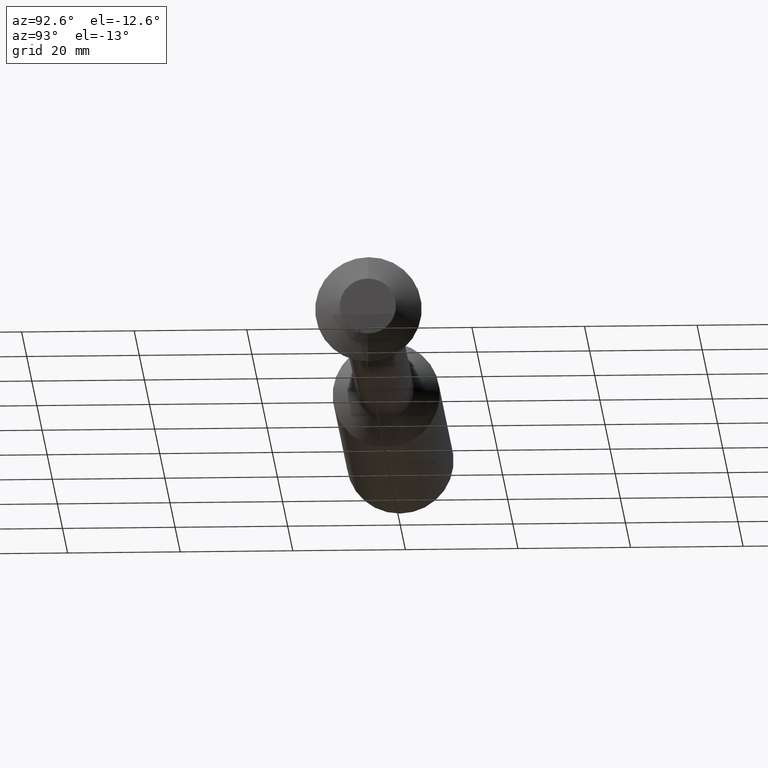
[diagram: clean part render]
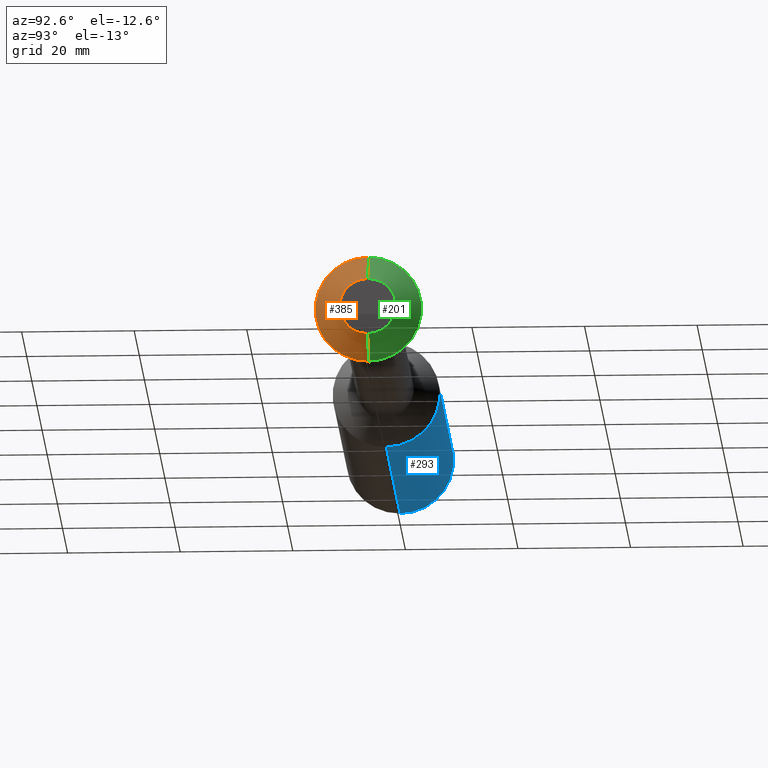
[diagram: same view with three faces highlighted in distinct colors, each labeled with its STEP entity id]
A machine part, auxiliary view with three faces highlighted in distinct colors.
Their STEP definitions:

[orange] entity #385 — the highlighted conical surface has half-angle 60.15 deg.
#39 = DIRECTION ( 'NONE',  ( -0.4977310399126148588, 1.062174661273174402E-16, -0.8673314314075714071 ) ) ;
#40 = EDGE_CURVE ( 'NONE', #486, #448, #194, .T. ) ;
#45 = FACE_OUTER_BOUND ( 'NONE', #67, .T. ) ;
#54 = CARTESIAN_POINT ( 'NONE',  ( 5.000000000000000000, 2.412554194320274621E-17, -0.1969999999999990925 ) ) ;
#59 = VECTOR ( 'NONE', #300, 39.37007874015748854 ) ;
#67 = EDGE_LOOP ( 'NONE', ( #185, #251, #209, #418 ) ) ;
#70 = DIRECTION ( 'NONE',  ( 0.0000000000000000000, 0.0000000000000000000, 1.000000000000000000 ) ) ;
#71 = DIRECTION ( 'NONE',  ( -1.000000000000000000, -0.0000000000000000000, -0.0000000000000000000 ) ) ;
#84 = CARTESIAN_POINT ( 'NONE',  ( 4.899286715156970118, 0.0000000000000000000, 0.0000000000000000000 ) ) ;
#96 = CARTESIAN_POINT ( 'NONE',  ( 5.000000000000000000, 3.487181760572077146E-17, -0.1969999999999990925 ) ) ;
#98 = VERTEX_POINT ( 'NONE', #363 ) ;
#128 = CONICAL_SURFACE ( 'NONE', #400, 0.1969999999999990925, 1.049815545074586076 ) ;
#180 = CIRCLE ( 'NONE', #429, 0.3724999999999991096 ) ;
#185 = ORIENTED_EDGE ( 'NONE', *, *, #40, .F. ) ;
#194 = LINE ( 'NONE', #54, #213 ) ;
#209 = ORIENTED_EDGE ( 'NONE', *, *, #276, .T. ) ;
#213 = VECTOR ( 'NONE', #39, 39.37007874015748854 ) ;
#217 = VERTEX_POINT ( 'NONE', #326 ) ;
#245 = CIRCLE ( 'NONE', #475, 0.1969999999999990925 ) ;
#251 = ORIENTED_EDGE ( 'NONE', *, *, #404, .T. ) ;
#257 = DIRECTION ( 'NONE',  ( 0.0000000000000000000, 0.0000000000000000000, 1.000000000000000000 ) ) ;
#264 = CARTESIAN_POINT ( 'NONE',  ( 5.000000000000000000, 0.0000000000000000000, 0.1969999999999990925 ) ) ;
#275 = CARTESIAN_POINT ( 'NONE',  ( 5.000000000000000000, 0.0000000000000000000, 0.0000000000000000000 ) ) ;
#276 = EDGE_CURVE ( 'NONE', #217, #98, #467, .T. ) ;
#300 = DIRECTION ( 'NONE',  ( -0.4977310399126148588, 0.0000000000000000000, 0.8673314314075714071 ) ) ;
#303 = DIRECTION ( 'NONE',  ( -1.000000000000000000, -0.0000000000000000000, -0.0000000000000000000 ) ) ;
#326 = CARTESIAN_POINT ( 'NONE',  ( 5.000000000000000000, 0.0000000000000000000, 0.1969999999999990925 ) ) ;
#330 = CARTESIAN_POINT ( 'NONE',  ( 5.000000000000000000, 0.0000000000000000000, 0.0000000000000000000 ) ) ;
#344 = EDGE_CURVE ( 'NONE', #448, #98, #180, .T. ) ;
#353 = DIRECTION ( 'NONE',  ( -1.000000000000000000, -0.0000000000000000000, -0.0000000000000000000 ) ) ;
#363 = CARTESIAN_POINT ( 'NONE',  ( 4.899286715156970118, 0.0000000000000000000, 0.3724999999999991096 ) ) ;
#365 = DIRECTION ( 'NONE',  ( 0.0000000000000000000, 0.0000000000000000000, 1.000000000000000000 ) ) ;
#385 = ADVANCED_FACE ( 'NONE', ( #45 ), #128, .T. ) ;
#400 = AXIS2_PLACEMENT_3D ( 'NONE', #275, #353, #257 ) ;
#404 = EDGE_CURVE ( 'NONE', #486, #217, #245, .T. ) ;
#418 = ORIENTED_EDGE ( 'NONE', *, *, #344, .F. ) ;
#429 = AXIS2_PLACEMENT_3D ( 'NONE', #84, #71, #70 ) ;
#448 = VERTEX_POINT ( 'NONE', #473 ) ;
#467 = LINE ( 'NONE', #264, #59 ) ;
#473 = CARTESIAN_POINT ( 'NONE',  ( 4.899286715156970118, 4.561809326823879363E-17, -0.3724999999999991096 ) ) ;
#475 = AXIS2_PLACEMENT_3D ( 'NONE', #330, #303, #365 ) ;
#486 = VERTEX_POINT ( 'NONE', #96 ) ;

[blue] entity #293 — the highlighted cylindrical surface (partial cylindrical patch) has radius 9.5212 mm, axis along (-1, -0, -0).
#2 = AXIS2_PLACEMENT_3D ( 'NONE', #378, #339, #403 ) ;
#6 = DIRECTION ( 'NONE',  ( -1.000000000000000000, -0.0000000000000000000, -0.0000000000000000000 ) ) ;
#21 = CARTESIAN_POINT ( 'NONE',  ( 0.02500000000000062589, 0.0000000000000000000, 0.3748500000000000165 ) ) ;
#31 = FACE_OUTER_BOUND ( 'NONE', #268, .T. ) ;
#37 = CIRCLE ( 'NONE', #231, 0.3748500000000000165 ) ;
#83 = ORIENTED_EDGE ( 'NONE', *, *, #354, .T. ) ;
#88 = DIRECTION ( 'NONE',  ( -1.000000000000000000, -0.0000000000000000000, -0.0000000000000000000 ) ) ;
#99 = VERTEX_POINT ( 'NONE', #267 ) ;
#106 = DIRECTION ( 'NONE',  ( -1.000000000000000000, -0.0000000000000000000, -0.0000000000000000000 ) ) ;
#126 = CYLINDRICAL_SURFACE ( 'NONE', #315, 0.3748500000000000165 ) ;
#130 = VERTEX_POINT ( 'NONE', #431 ) ;
#142 = CIRCLE ( 'NONE', #2, 0.3748500000000000165 ) ;
#144 = CARTESIAN_POINT ( 'NONE',  ( 0.0000000000000000000, 0.0000000000000000000, 0.3748500000000000165 ) ) ;
#165 = VECTOR ( 'NONE', #88, 39.37007874015748143 ) ;
#191 = ORIENTED_EDGE ( 'NONE', *, *, #364, .F. ) ;
#199 = LINE ( 'NONE', #144, #203 ) ;
#203 = VECTOR ( 'NONE', #106, 39.37007874015748143 ) ;
#226 = CARTESIAN_POINT ( 'NONE',  ( 0.0000000000000000000, 0.0000000000000000000, 0.0000000000000000000 ) ) ;
#231 = AXIS2_PLACEMENT_3D ( 'NONE', #451, #6, #402 ) ;
#267 = CARTESIAN_POINT ( 'NONE',  ( 0.02500000000000062589, 4.590588526603853748E-17, -0.3748500000000000165 ) ) ;
#268 = EDGE_LOOP ( 'NONE', ( #342, #83, #450, #191 ) ) ;
#283 = DIRECTION ( 'NONE',  ( -1.000000000000000000, -0.0000000000000000000, -0.0000000000000000000 ) ) ;
#285 = CARTESIAN_POINT ( 'NONE',  ( 0.0000000000000000000, 4.590588526603853748E-17, -0.3748500000000000165 ) ) ;
#293 = ADVANCED_FACE ( 'NONE', ( #31 ), #126, .T. ) ;
#295 = EDGE_CURVE ( 'NONE', #501, #130, #37, .T. ) ;
#298 = VERTEX_POINT ( 'NONE', #21 ) ;
#315 = AXIS2_PLACEMENT_3D ( 'NONE', #226, #283, #335 ) ;
#322 = CARTESIAN_POINT ( 'NONE',  ( 2.158436715156969221, 0.0000000000000000000, 0.3748500000000000165 ) ) ;
#335 = DIRECTION ( 'NONE',  ( 0.0000000000000000000, 0.0000000000000000000, 1.000000000000000000 ) ) ;
#339 = DIRECTION ( 'NONE',  ( 1.000000000000000000, 0.0000000000000000000, 0.0000000000000000000 ) ) ;
#342 = ORIENTED_EDGE ( 'NONE', *, *, #295, .T. ) ;
#343 = LINE ( 'NONE', #285, #165 ) ;
#354 = EDGE_CURVE ( 'NONE', #130, #99, #343, .T. ) ;
#364 = EDGE_CURVE ( 'NONE', #501, #298, #199, .T. ) ;
#378 = CARTESIAN_POINT ( 'NONE',  ( 0.02500000000000062589, 0.0000000000000000000, 0.0000000000000000000 ) ) ;
#402 = DIRECTION ( 'NONE',  ( 0.0000000000000000000, 0.0000000000000000000, 1.000000000000000000 ) ) ;
#403 = DIRECTION ( 'NONE',  ( 0.0000000000000000000, 0.0000000000000000000, -1.000000000000000000 ) ) ;
#431 = CARTESIAN_POINT ( 'NONE',  ( 2.158436715156969221, 4.590588526603853748E-17, -0.3748500000000000165 ) ) ;
#450 = ORIENTED_EDGE ( 'NONE', *, *, #478, .T. ) ;
#451 = CARTESIAN_POINT ( 'NONE',  ( 2.158436715156969221, 0.0000000000000000000, 0.0000000000000000000 ) ) ;
#478 = EDGE_CURVE ( 'NONE', #99, #298, #142, .T. ) ;
#501 = VERTEX_POINT ( 'NONE', #322 ) ;

[green] entity #201 — the highlighted conical surface has half-angle 60.15 deg.
#3 = DIRECTION ( 'NONE',  ( 0.0000000000000000000, 0.0000000000000000000, 1.000000000000000000 ) ) ;
#26 = CARTESIAN_POINT ( 'NONE',  ( 4.899286715156970118, 0.0000000000000000000, 0.0000000000000000000 ) ) ;
#32 = CIRCLE ( 'NONE', #247, 0.1969999999999990925 ) ;
#36 = EDGE_CURVE ( 'NONE', #217, #486, #32, .T. ) ;
#39 = DIRECTION ( 'NONE',  ( -0.4977310399126148588, 1.062174661273174402E-16, -0.8673314314075714071 ) ) ;
#40 = EDGE_CURVE ( 'NONE', #486, #448, #194, .T. ) ;
#54 = CARTESIAN_POINT ( 'NONE',  ( 5.000000000000000000, 2.412554194320274621E-17, -0.1969999999999990925 ) ) ;
#57 = DIRECTION ( 'NONE',  ( 0.0000000000000000000, 0.0000000000000000000, 1.000000000000000000 ) ) ;
#59 = VECTOR ( 'NONE', #300, 39.37007874015748854 ) ;
#69 = DIRECTION ( 'NONE',  ( -1.000000000000000000, -0.0000000000000000000, -0.0000000000000000000 ) ) ;
#92 = ORIENTED_EDGE ( 'NONE', *, *, #40, .T. ) ;
#96 = CARTESIAN_POINT ( 'NONE',  ( 5.000000000000000000, 3.487181760572077146E-17, -0.1969999999999990925 ) ) ;
#98 = VERTEX_POINT ( 'NONE', #363 ) ;
#179 = CIRCLE ( 'NONE', #374, 0.3724999999999991096 ) ;
#194 = LINE ( 'NONE', #54, #213 ) ;
#201 = ADVANCED_FACE ( 'NONE', ( #310 ), #488, .T. ) ;
#213 = VECTOR ( 'NONE', #39, 39.37007874015748854 ) ;
#217 = VERTEX_POINT ( 'NONE', #326 ) ;
#222 = AXIS2_PLACEMENT_3D ( 'NONE', #318, #317, #3 ) ;
#247 = AXIS2_PLACEMENT_3D ( 'NONE', #494, #296, #57 ) ;
#259 = EDGE_LOOP ( 'NONE', ( #391, #92, #329, #387 ) ) ;
#264 = CARTESIAN_POINT ( 'NONE',  ( 5.000000000000000000, 0.0000000000000000000, 0.1969999999999990925 ) ) ;
#274 = DIRECTION ( 'NONE',  ( 0.0000000000000000000, 0.0000000000000000000, 1.000000000000000000 ) ) ;
#276 = EDGE_CURVE ( 'NONE', #217, #98, #467, .T. ) ;
#296 = DIRECTION ( 'NONE',  ( -1.000000000000000000, -0.0000000000000000000, -0.0000000000000000000 ) ) ;
#300 = DIRECTION ( 'NONE',  ( -0.4977310399126148588, 0.0000000000000000000, 0.8673314314075714071 ) ) ;
#310 = FACE_OUTER_BOUND ( 'NONE', #259, .T. ) ;
#317 = DIRECTION ( 'NONE',  ( -1.000000000000000000, -0.0000000000000000000, -0.0000000000000000000 ) ) ;
#318 = CARTESIAN_POINT ( 'NONE',  ( 5.000000000000000000, 0.0000000000000000000, 0.0000000000000000000 ) ) ;
#326 = CARTESIAN_POINT ( 'NONE',  ( 5.000000000000000000, 0.0000000000000000000, 0.1969999999999990925 ) ) ;
#329 = ORIENTED_EDGE ( 'NONE', *, *, #362, .F. ) ;
#362 = EDGE_CURVE ( 'NONE', #98, #448, #179, .T. ) ;
#363 = CARTESIAN_POINT ( 'NONE',  ( 4.899286715156970118, 0.0000000000000000000, 0.3724999999999991096 ) ) ;
#374 = AXIS2_PLACEMENT_3D ( 'NONE', #26, #69, #274 ) ;
#387 = ORIENTED_EDGE ( 'NONE', *, *, #276, .F. ) ;
#391 = ORIENTED_EDGE ( 'NONE', *, *, #36, .T. ) ;
#448 = VERTEX_POINT ( 'NONE', #473 ) ;
#467 = LINE ( 'NONE', #264, #59 ) ;
#473 = CARTESIAN_POINT ( 'NONE',  ( 4.899286715156970118, 4.561809326823879363E-17, -0.3724999999999991096 ) ) ;
#486 = VERTEX_POINT ( 'NONE', #96 ) ;
#488 = CONICAL_SURFACE ( 'NONE', #222, 0.1969999999999990925, 1.049815545074586076 ) ;
#494 = CARTESIAN_POINT ( 'NONE',  ( 5.000000000000000000, 0.0000000000000000000, 0.0000000000000000000 ) ) ;